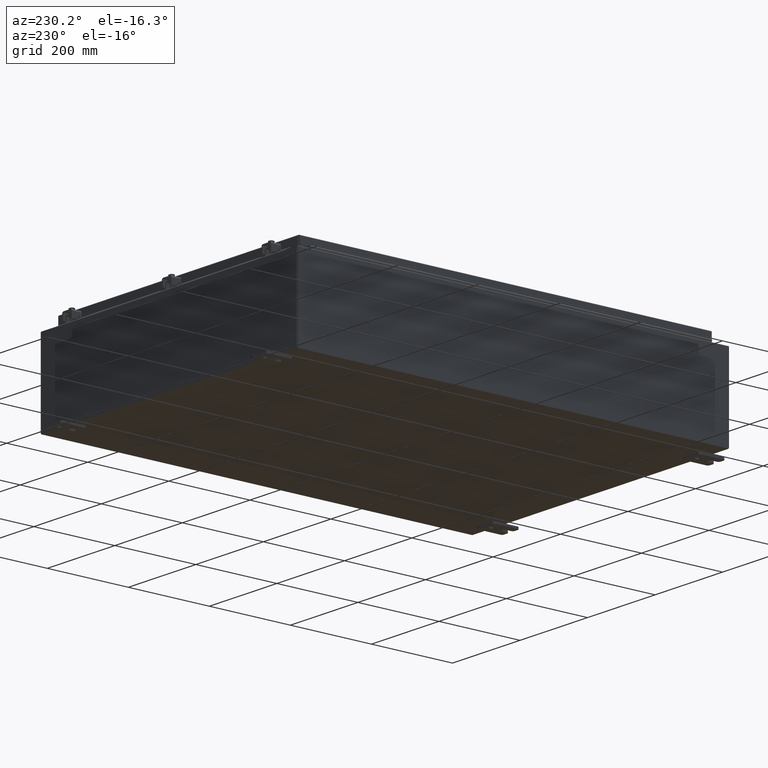
[diagram: clean part render]
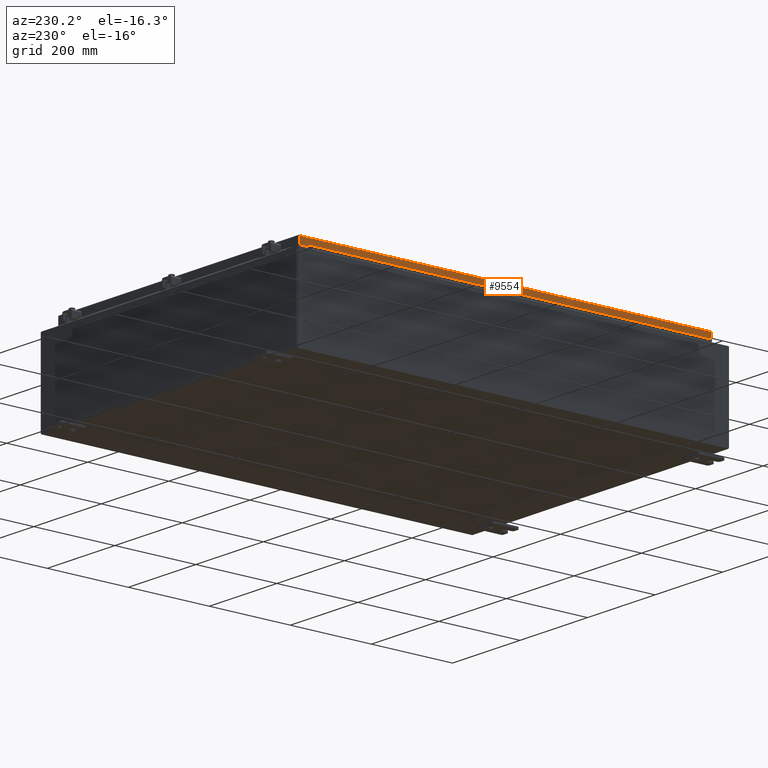
[diagram: same view with one face highlighted and labeled with its STEP entity id]
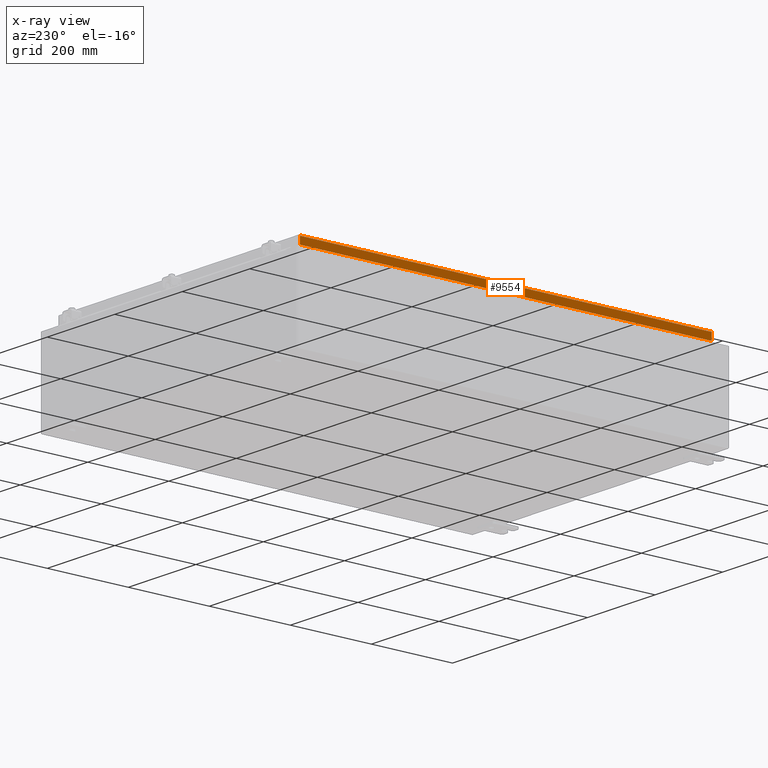
[diagram: x-ray of the same camera — body ghosted, the highlighted face saturated]
A machine part, auxiliary view. The second image highlights one B-rep face of the part: STEP entity #9554.
The next image is the same camera in x-ray: the body ghosted, the highlighted face saturated — about 0% of this face is hidden behind the body in this view.
In plain terms, the highlighted planar face has unit normal (1, 0, -0).
Its self-contained STEP definition (entity closure, byte-faithful):
#1482 = CARTESIAN_POINT ( 'NONE',  ( -14.07799999999999800, -20.00515786437627200, -0.07469999999999976700 ) ) ;
#1539 = DIRECTION ( 'NONE',  ( 3.712493866327201700E-031, -1.000000000000000000, -1.094373472637052200E-045 ) ) ;
#1749 = DIRECTION ( 'NONE',  ( 4.379057701015054300E-047, 1.000000000000000000, 1.223580767541473800E-016 ) ) ;
#5936 = EDGE_CURVE ( 'NONE', #21908, #45553, #10178, .T. ) ;
#7423 = CARTESIAN_POINT ( 'NONE',  ( -14.07799999999999800, -5.226448865015432600E-030, 4.297518939368254200E-014 ) ) ;
#9554 = ADVANCED_FACE ( 'NONE', ( #36325 ), #33478, .F. ) ;
#9863 = LINE ( 'NONE', #1482, #36051 ) ;
#10178 = LINE ( 'NONE', #24010, #47377 ) ;
#11975 = EDGE_LOOP ( 'NONE', ( #13093, #25486, #27413, #24502 ) ) ;
#12852 = EDGE_CURVE ( 'NONE', #28267, #14594, #25547, .T. ) ;
#12944 = VECTOR ( 'NONE', #34188, 39.37007874015748100 ) ;
#13093 = ORIENTED_EDGE ( 'NONE', *, *, #12852, .F. ) ;
#14594 = VERTEX_POINT ( 'NONE', #41493 ) ;
#14927 = DIRECTION ( 'NONE',  ( -3.034122441942816500E-015, 0.0000000000000000000, -1.000000000000000000 ) ) ;
#21908 = VERTEX_POINT ( 'NONE', #23700 ) ;
#23100 = CARTESIAN_POINT ( 'NONE',  ( -14.07799999999999800, 20.00515786437627200, 1.826704601218439800E-013 ) ) ;
#23700 = CARTESIAN_POINT ( 'NONE',  ( -14.07799999999999900, -20.00515786437626900, -0.7949999999999996000 ) ) ;
#23825 = CARTESIAN_POINT ( 'NONE',  ( -14.07799999999999800, -20.09400000000000800, -0.08770000000000004200 ) ) ;
#23898 = AXIS2_PLACEMENT_3D ( 'NONE', #7423, #37233, #14927 ) ;
#23963 = LINE ( 'NONE', #23100, #12944 ) ;
#24010 = CARTESIAN_POINT ( 'NONE',  ( -14.07799999999999900, -20.09400000000000800, -0.7949999999999997100 ) ) ;
#24502 = ORIENTED_EDGE ( 'NONE', *, *, #45316, .F. ) ;
#25486 = ORIENTED_EDGE ( 'NONE', *, *, #43559, .T. ) ;
#25547 = LINE ( 'NONE', #23825, #34317 ) ;
#27413 = ORIENTED_EDGE ( 'NONE', *, *, #5936, .F. ) ;
#28267 = VERTEX_POINT ( 'NONE', #47587 ) ;
#29104 = CARTESIAN_POINT ( 'NONE',  ( -14.07799999999999900, 20.00515786437628000, -0.7949999999999948200 ) ) ;
#31267 = DIRECTION ( 'NONE',  ( -3.034122441942816500E-015, 6.982962677686267500E-015, -1.000000000000000000 ) ) ;
#33478 = PLANE ( 'NONE',  #23898 ) ;
#34188 = DIRECTION ( 'NONE',  ( -3.034122441942816500E-015, 6.982962677686267500E-015, -1.000000000000000000 ) ) ;
#34317 = VECTOR ( 'NONE', #1539, 39.37007874015748100 ) ;
#36051 = VECTOR ( 'NONE', #31267, 39.37007874015748100 ) ;
#36325 = FACE_OUTER_BOUND ( 'NONE', #11975, .T. ) ;
#37233 = DIRECTION ( 'NONE',  ( 1.000000000000000000, 3.712493866327201300E-031, -3.034122441942816500E-015 ) ) ;
#41493 = CARTESIAN_POINT ( 'NONE',  ( -14.07799999999999800, -20.00515786437626900, -0.08770000000000007000 ) ) ;
#43559 = EDGE_CURVE ( 'NONE', #28267, #45553, #23963, .T. ) ;
#45316 = EDGE_CURVE ( 'NONE', #14594, #21908, #9863, .T. ) ;
#45553 = VERTEX_POINT ( 'NONE', #29104 ) ;
#47377 = VECTOR ( 'NONE', #1749, 39.37007874015748100 ) ;
#47587 = CARTESIAN_POINT ( 'NONE',  ( -14.07799999999999800, 20.00515786437627200, -0.08770000000000004200 ) ) ;